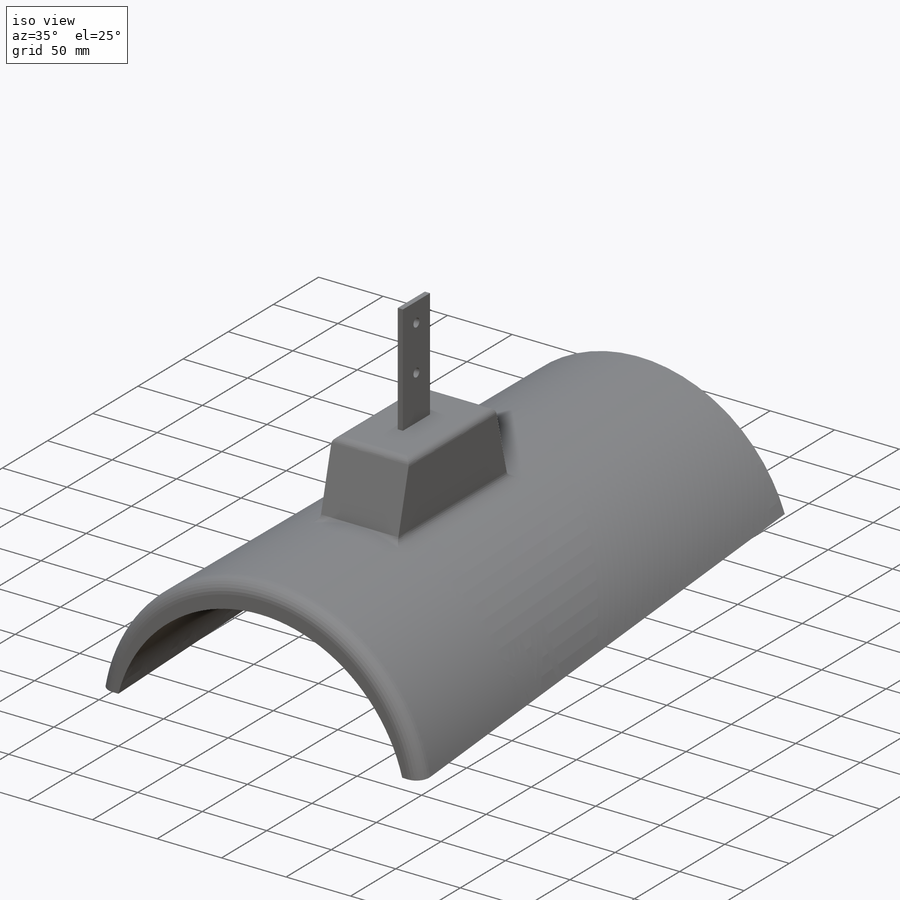
[diagram: iso view]
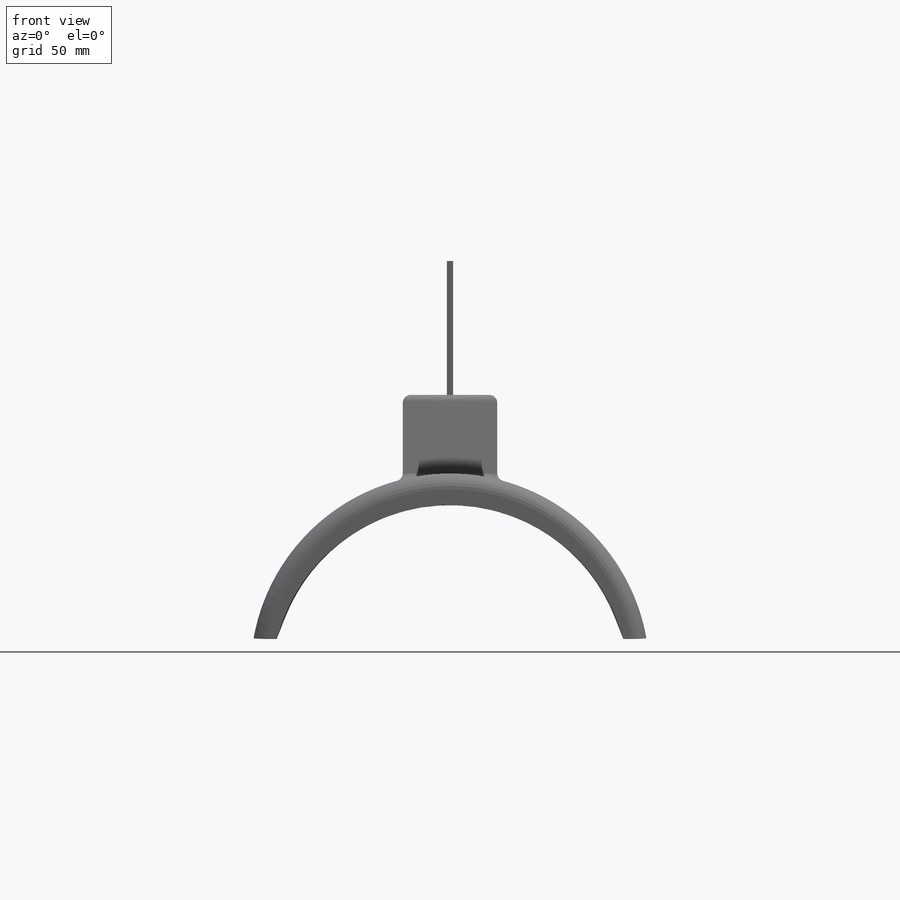
[diagram: front view]
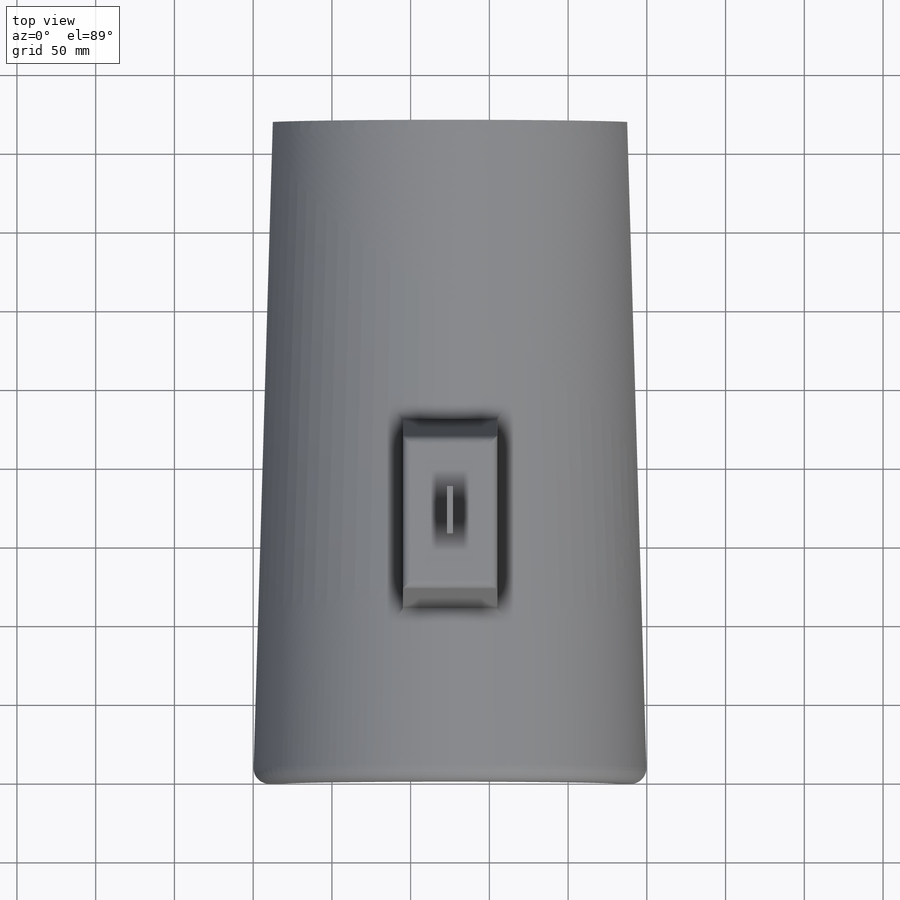
[diagram: top view]
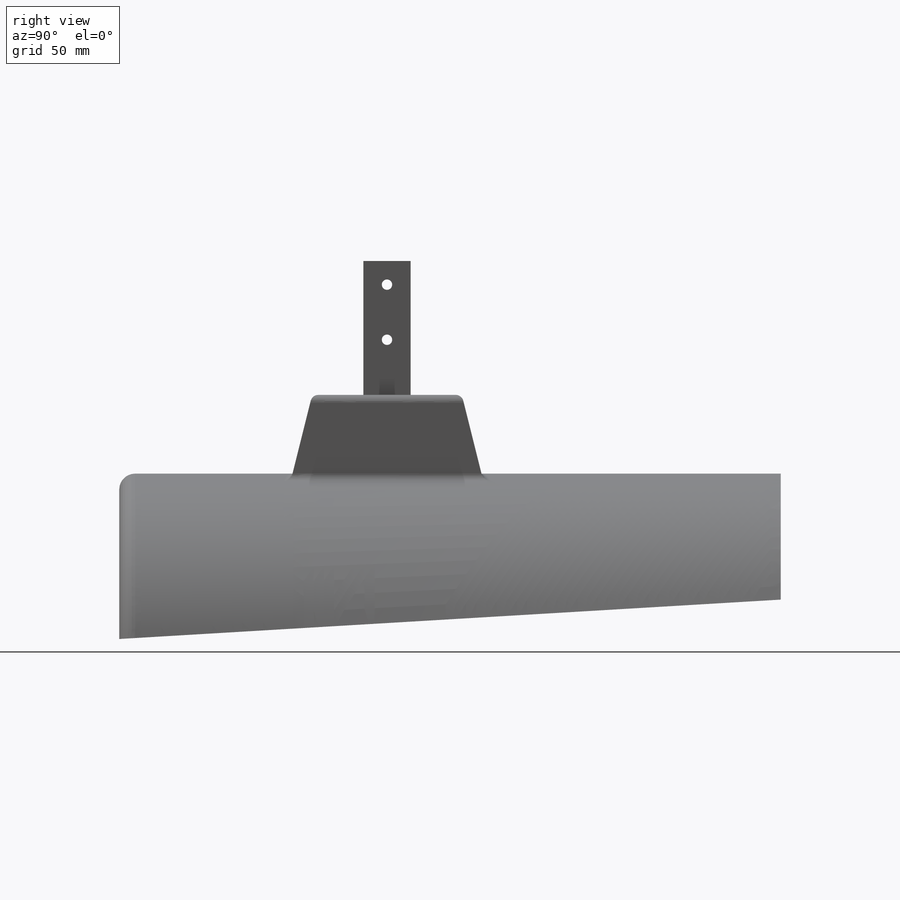
[diagram: right view]
SOLIDWORKS PART (.sldprt)
format: sldprt  version: not decoded by parser v0  size: 706,560 bytes
history: native  units: mm
features: sketch x8, plane x6, extrude x3, fillet x2, material x1, chamfer x1, hole x1 (+14 scaffold rows collapsed)
feature tree (36):
  scaffold x14  (default folders/planes/origin — collapsed)
  material  "Materiál <není určen>"
  plane  "Přední rovina"
  plane  "Horní rovina"
  plane  "Pravá rovina"
  sketch  "Skica1"  dims[c1.D3=~126.904762mm c1.D1=250.0mm c1.D2=105.0mm c2.D3=20.0mm c2.D4=15.0mm]
  plane  "Rovina1"  Offset=420mm
  sketch  "Skica2"  dims[c1.D3=~110.919162mm c1.D1=225.0mm c1.D2=80.0mm c2.D3=20.0mm]
  plane  "Rovina2"  Offset=125mm
  sketch  "Skica3"
  plane  "Rovina3"  Offset=105mm
  sketch  "Skica4"  dims[D1=120.0mm D2=60.0mm D3=110.0mm]
  extrude  "Vysunout1"  Depth=50mm
  sketch  "Skica5"  dims[D1=0.0mm]
  extrude  "Vysunout2"  [1 undecoded]
  chamfer  "Zkosení1"  Distance=50mm
  sketch  "Skica6"  dims[D1=4.0mm D2=30.0mm]
  extrude  "Vysunout3"  Depth=85mm
  hole  "M6 díra s vůlí1"  Diameter=6.6mm Depth=127.011391mm
  sketch  "Skica8"  dims[D1=35.0mm D2=15.0mm]
  sketch  "Skica9"  dims[hole-wizard template sketch: 59 standard entries collapsed; hole parameters kept: c18.Průměr díry skrz=6.6mm c18.Hloubka díry skrz=~127.011391mm]
  fillet  "Zaoblit1"  Radius=10mm
  fillet  "Zaoblit2"  Radius=5mm
decode coverage: 13 of 15 modeling features carry decoded parameters
note: ~ marks probable driven/reference dimensions
note: 1 parameter value undecoded
note: suppression state not decoded; provenance and decode notes live in map.json
